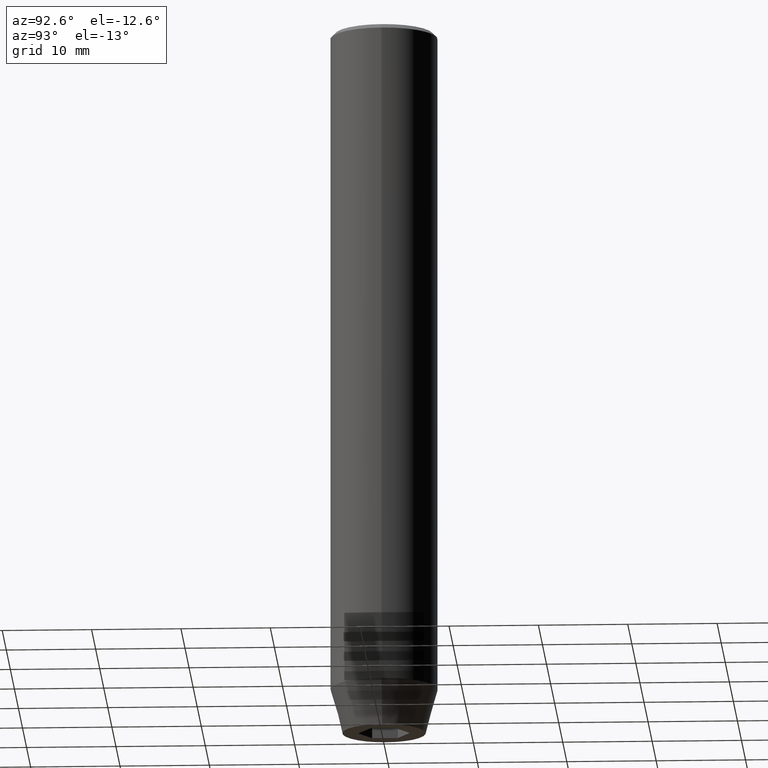
[diagram: clean part render]
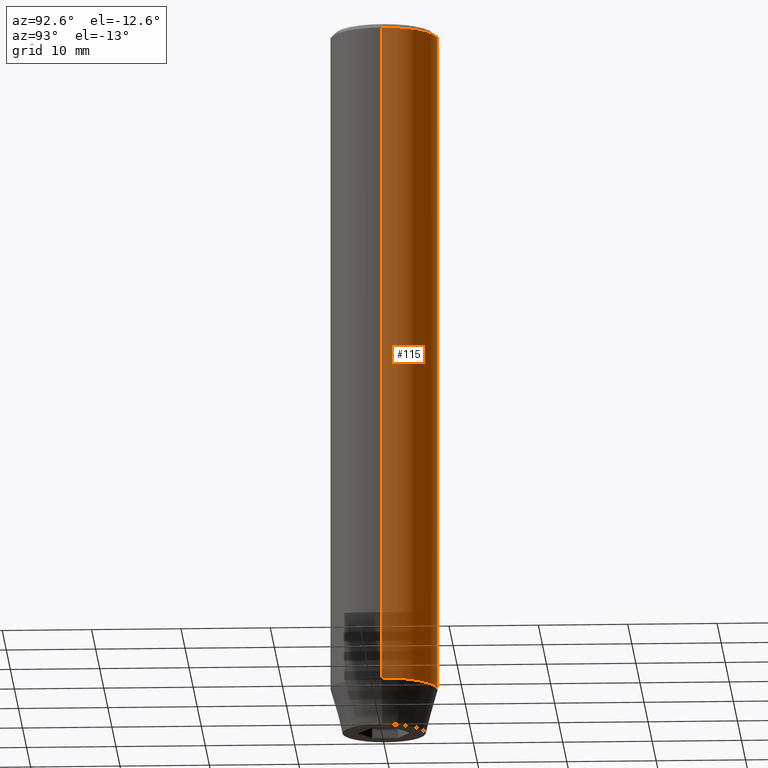
[diagram: same view with one face highlighted and labeled with its STEP entity id]
A machine part, auxiliary view. The second image highlights one B-rep face of the part: STEP entity #115.
In plain terms, the highlighted cylindrical surface (partial cylindrical patch) has radius 6 mm, axis along (-0, -0, 1).
Its self-contained STEP definition (entity closure, byte-faithful):
#5 = CIRCLE ( 'NONE', #300, 6.000000000000000000 ) ;
#27 = CARTESIAN_POINT ( 'NONE',  ( 6.000000000000000000, 0.000000000000000000, -0.4999999999999891753 ) ) ;
#43 = CARTESIAN_POINT ( 'NONE',  ( 6.000000000000000000, 0.000000000000000000, 0.000000000000000000 ) ) ;
#74 = EDGE_CURVE ( 'NONE', #222, #205, #479, .T. ) ;
#86 = DIRECTION ( 'NONE',  ( -0.000000000000000000, -0.000000000000000000, 1.000000000000000000 ) ) ;
#115 = ADVANCED_FACE ( 'NONE', ( #342 ), #296, .T. ) ;
#122 = CARTESIAN_POINT ( 'NONE',  ( -6.000000000000000000, 7.347880794884119736E-16, -75.00000000000001421 ) ) ;
#131 = DIRECTION ( 'NONE',  ( 1.000000000000000000, 0.000000000000000000, 0.000000000000000000 ) ) ;
#162 = CARTESIAN_POINT ( 'NONE',  ( 0.000000000000000000, 0.000000000000000000, 0.000000000000000000 ) ) ;
#176 = ORIENTED_EDGE ( 'NONE', *, *, #384, .F. ) ;
#187 = DIRECTION ( 'NONE',  ( -0.000000000000000000, -0.000000000000000000, 1.000000000000000000 ) ) ;
#205 = VERTEX_POINT ( 'NONE', #27 ) ;
#210 = DIRECTION ( 'NONE',  ( 0.000000000000000000, 0.000000000000000000, -1.000000000000000000 ) ) ;
#222 = VERTEX_POINT ( 'NONE', #550 ) ;
#226 = VECTOR ( 'NONE', #187, 1000.000000000000000 ) ;
#231 = DIRECTION ( 'NONE',  ( -0.000000000000000000, -0.000000000000000000, 1.000000000000000000 ) ) ;
#247 = EDGE_LOOP ( 'NONE', ( #402, #401, #396, #176 ) ) ;
#259 = DIRECTION ( 'NONE',  ( 1.000000000000000000, 0.000000000000000000, 0.000000000000000000 ) ) ;
#277 = VECTOR ( 'NONE', #231, 1000.000000000000000 ) ;
#288 = CARTESIAN_POINT ( 'NONE',  ( 0.000000000000000000, 0.000000000000000000, -0.4999999999999891753 ) ) ;
#296 = CYLINDRICAL_SURFACE ( 'NONE', #451, 6.000000000000000000 ) ;
#300 = AXIS2_PLACEMENT_3D ( 'NONE', #484, #86, #259 ) ;
#312 = DIRECTION ( 'NONE',  ( -0.000000000000000000, -0.000000000000000000, 1.000000000000000000 ) ) ;
#342 = FACE_OUTER_BOUND ( 'NONE', #247, .T. ) ;
#384 = EDGE_CURVE ( 'NONE', #410, #205, #442, .T. ) ;
#396 = ORIENTED_EDGE ( 'NONE', *, *, #74, .T. ) ;
#401 = ORIENTED_EDGE ( 'NONE', *, *, #587, .T. ) ;
#402 = ORIENTED_EDGE ( 'NONE', *, *, #553, .T. ) ;
#410 = VERTEX_POINT ( 'NONE', #517 ) ;
#411 = LINE ( 'NONE', #454, #277 ) ;
#442 = LINE ( 'NONE', #43, #226 ) ;
#451 = AXIS2_PLACEMENT_3D ( 'NONE', #162, #312, #470 ) ;
#454 = CARTESIAN_POINT ( 'NONE',  ( -6.000000000000000000, 7.347880794884119736E-16, 0.000000000000000000 ) ) ;
#470 = DIRECTION ( 'NONE',  ( 1.000000000000000000, 0.000000000000000000, 0.000000000000000000 ) ) ;
#479 = CIRCLE ( 'NONE', #561, 6.000000000000000000 ) ;
#484 = CARTESIAN_POINT ( 'NONE',  ( 0.000000000000000000, 0.000000000000000000, -75.00000000000001421 ) ) ;
#517 = CARTESIAN_POINT ( 'NONE',  ( 6.000000000000000000, 0.000000000000000000, -75.00000000000001421 ) ) ;
#527 = VERTEX_POINT ( 'NONE', #122 ) ;
#550 = CARTESIAN_POINT ( 'NONE',  ( -6.000000000000000000, 7.347880794884119736E-16, -0.4999999999999891753 ) ) ;
#553 = EDGE_CURVE ( 'NONE', #410, #527, #5, .T. ) ;
#561 = AXIS2_PLACEMENT_3D ( 'NONE', #288, #210, #131 ) ;
#587 = EDGE_CURVE ( 'NONE', #527, #222, #411, .T. ) ;